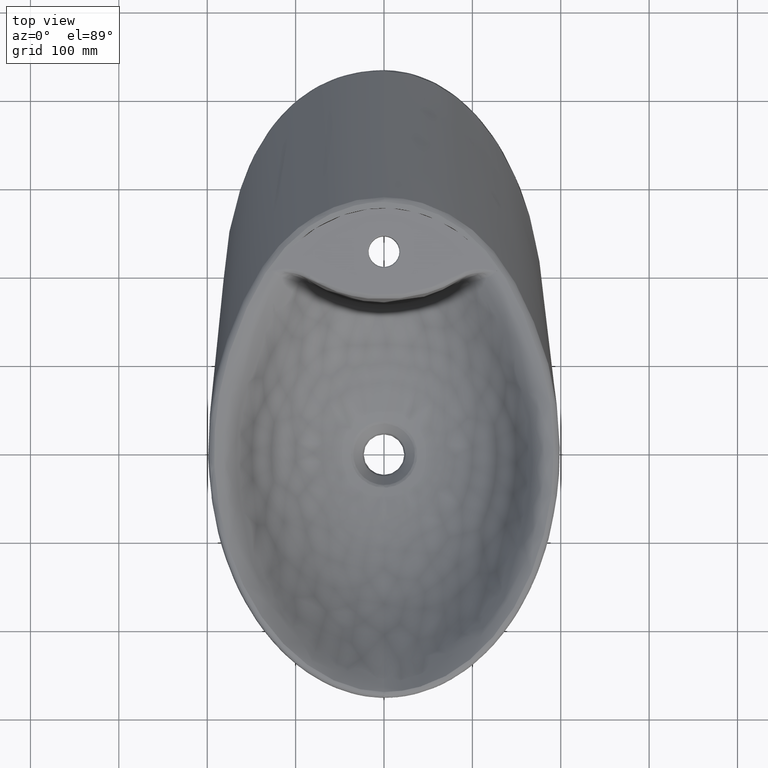
[diagram: clean part render]
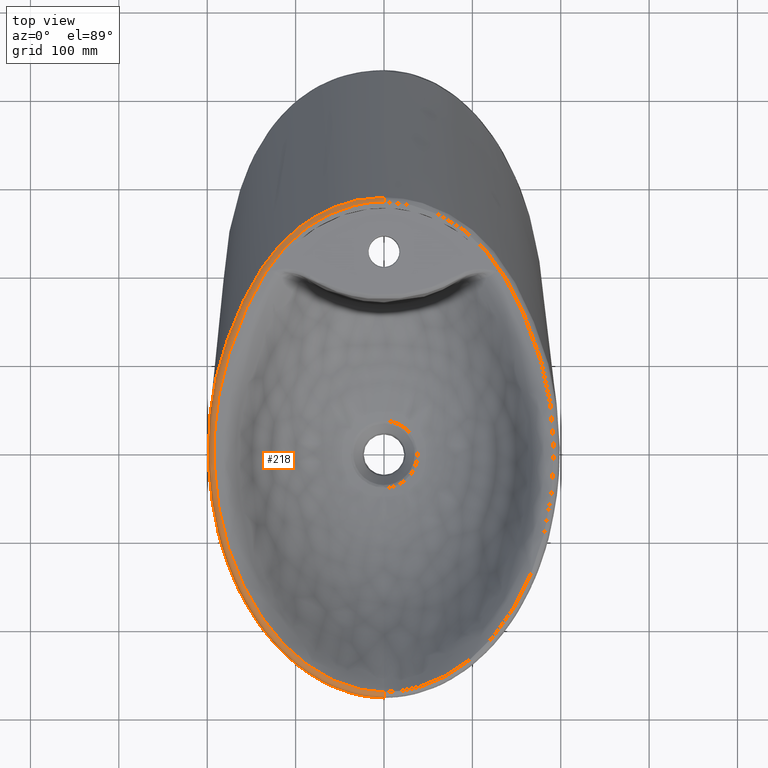
[diagram: same view with one face highlighted and labeled with its STEP entity id]
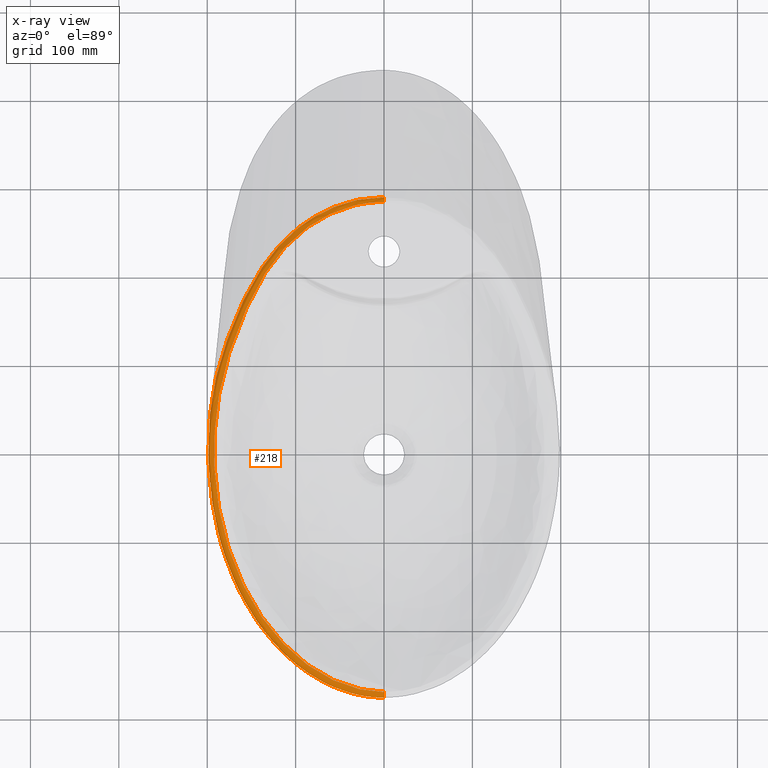
[diagram: x-ray of the same camera — body ghosted, the highlighted face saturated]
A machine part, top view. The second image highlights one B-rep face of the part: STEP entity #218.
The next image is the same camera in x-ray: the body ghosted, the highlighted face saturated — about 0% of this face is hidden behind the body in this view.
In plain terms, the highlighted face is a freeform B-spline surface patch.
Its self-contained STEP definition (entity closure, byte-faithful):
#120=(
BOUNDED_SURFACE()
B_SPLINE_SURFACE(2,3,((#10795,#10796,#10797,#10798,#10799,#10800,#10801,
#10802,#10803,#10804,#10805,#10806,#10807,#10808,#10809,#10810,#10811,#10812,
#10813,#10814,#10815,#10816,#10817,#10818,#10819,#10820,#10821,#10822,#10823,
#10824,#10825,#10826,#10827,#10828,#10829,#10830,#10831,#10832,#10833,#10834,
#10835,#10836,#10837,#10838,#10839,#10840,#10841,#10842,#10843,#10844,#10845,
#10846,#10847,#10848,#10849,#10850,#10851,#10852,#10853,#10854,#10855,#10856,
#10857,#10858,#10859,#10860,#10861,#10862,#10863,#10864,#10865,#10866,#10867,
#10868,#10869,#10870,#10871,#10872,#10873,#10874,#10875,#10876,#10877,#10878,
#10879,#10880,#10881,#10882,#10883,#10884,#10885,#10886,#10887,#10888),
(#10889,#10890,#10891,#10892,#10893,#10894,#10895,#10896,#10897,#10898,
#10899,#10900,#10901,#10902,#10903,#10904,#10905,#10906,#10907,#10908,#10909,
#10910,#10911,#10912,#10913,#10914,#10915,#10916,#10917,#10918,#10919,#10920,
#10921,#10922,#10923,#10924,#10925,#10926,#10927,#10928,#10929,#10930,#10931,
#10932,#10933,#10934,#10935,#10936,#10937,#10938,#10939,#10940,#10941,#10942,
#10943,#10944,#10945,#10946,#10947,#10948,#10949,#10950,#10951,#10952,#10953,
#10954,#10955,#10956,#10957,#10958,#10959,#10960,#10961,#10962,#10963,#10964,
#10965,#10966,#10967,#10968,#10969,#10970,#10971,#10972,#10973,#10974,#10975,
#10976,#10977,#10978,#10979,#10980,#10981,#10982),(#10983,#10984,#10985,
#10986,#10987,#10988,#10989,#10990,#10991,#10992,#10993,#10994,#10995,#10996,
#10997,#10998,#10999,#11000,#11001,#11002,#11003,#11004,#11005,#11006,#11007,
#11008,#11009,#11010,#11011,#11012,#11013,#11014,#11015,#11016,#11017,#11018,
#11019,#11020,#11021,#11022,#11023,#11024,#11025,#11026,#11027,#11028,#11029,
#11030,#11031,#11032,#11033,#11034,#11035,#11036,#11037,#11038,#11039,#11040,
#11041,#11042,#11043,#11044,#11045,#11046,#11047,#11048,#11049,#11050,#11051,
#11052,#11053,#11054,#11055,#11056,#11057,#11058,#11059,#11060,#11061,#11062,
#11063,#11064,#11065,#11066,#11067,#11068,#11069,#11070,#11071,#11072,#11073,
#11074,#11075,#11076)),.UNSPECIFIED.,.F.,.F.,.F.)
B_SPLINE_SURFACE_WITH_KNOTS((3,3),(4,2,2,2,2,2,2,2,2,2,2,2,2,2,2,2,2,2,
2,2,2,2,2,2,2,2,2,2,2,2,2,2,2,2,2,2,2,2,2,2,2,2,2,2,2,2,4),(0.,1.),(0.,
0.0009765625,0.001953125,0.00390625,0.0078125,0.015625,0.03125,0.0625,0.125,
0.1875,0.25,0.3125,0.375,0.4375,0.5,0.50048828125,0.5009765625,0.501953125,
0.50390625,0.5078125,0.515625,0.53125,0.5625,0.625,0.65625,0.6875,0.6953125,
0.703125,0.71875,0.75,0.75048828125,0.7509765625,0.751953125,0.75390625,
0.7578125,0.765625,0.78125,0.8125,0.875,0.8759765625,0.876953125,0.87890625,
0.8828125,0.890625,0.90625,0.9375,1.),.UNSPECIFIED.)
GEOMETRIC_REPRESENTATION_ITEM()
RATIONAL_B_SPLINE_SURFACE(((1.,1.,1.,1.,1.,1.,1.,1.,1.,1.,1.,1.,1.,1.,1.,
1.,1.,1.,1.,1.,1.,1.,1.,1.,1.,1.,1.,1.,1.,1.,1.,1.,1.,1.,1.,1.,1.,1.,1.,
1.,1.,1.,1.,1.,1.,1.,1.,1.,1.,1.,1.,1.,1.,1.,1.,1.,1.,1.,1.,1.,1.,1.,1.,
1.,1.,1.,1.,1.,1.,1.,1.,1.,1.,1.,1.,1.,1.,1.,1.,1.,1.,1.,1.,1.,1.,1.,1.,
1.,1.,1.,1.,1.,1.,1.),(0.194194751152532,0.194167239897954,0.19416036085634,
0.194134527430296,0.194121430667637,0.194081611457449,0.194054360055503,
0.193970580916874,0.193912027674847,0.193729010678562,0.193597178001968,
0.193178524938617,0.19286823658967,0.191902962402985,0.191202376924033,
0.189678049240112,0.189206646613415,0.194123693348431,0.199559133064821,
0.220863509214191,0.237374091251381,0.281363978295846,0.309958368205674,
0.375575440810765,0.413190927438893,0.484231578382725,0.517031309847995,
0.577402727649735,0.607881423215454,0.641447201221586,0.641403962052924,
0.641487926228353,0.641530154749993,0.64165758004101,0.641743516534412,
0.642004288363966,0.642182085854943,0.642727354380042,0.643106701638531,
0.644292497680685,0.645146691879367,0.647902561442335,0.650000622368357,
0.657062680349364,0.662790927091347,0.68310012489854,0.700927088524681,
0.733689524582585,0.745435976314396,0.770234334371072,0.783709789549626,
0.800126662464972,0.803870337865317,0.808171709244196,0.809538769638903,
0.814300354360387,0.817355974311297,0.828989045213769,0.838151857499205,
0.848235488458615,0.848315191085488,0.848536040443759,0.848646455833009,
0.848977679700958,0.849198464797755,0.849860763613343,0.850302222511661,
0.851626679054331,0.852510059151109,0.855160575194924,0.856926404311846,
0.86220506242036,0.865699014573527,0.87598030706542,0.882563998893693,0.900661363366382,
0.910321388926596,0.91683795641103,0.916892571046314,0.917045737755239,
0.917122407467111,0.917352761750484,0.917507261723268,0.917974206778886,
0.918288520559691,0.919212863978314,0.919791061513603,0.921367208848063,
0.922389590617478,0.92540840422309,0.927217523972883,0.931937836599327,
0.933997639719353,0.933962512398455),(1.,1.,1.,1.,1.,1.,1.,1.,1.,1.,1.,
1.,1.,1.,1.,1.,1.,1.,1.,1.,1.,1.,1.,1.,1.,1.,1.,1.,1.,1.,1.,1.,1.,1.,1.,
1.,1.,1.,1.,1.,1.,1.,1.,1.,1.,1.,1.,1.,1.,1.,1.,1.,1.,1.,1.,1.,1.,1.,1.,
1.,1.,1.,1.,1.,1.,1.,1.,1.,1.,1.,1.,1.,1.,1.,1.,1.,1.,1.,1.,1.,1.,1.,1.,
1.,1.,1.,1.,1.,1.,1.,1.,1.,1.,1.)))
REPRESENTATION_ITEM('')
SURFACE()
);
#155=FACE_OUTER_BOUND('',#395,.T.);
#218=ADVANCED_FACE('',(#155),#120,.F.);
#301=B_SPLINE_CURVE_WITH_KNOTS('',3,(#10432,#10433,#10434,#10435),
 .UNSPECIFIED.,.F.,.F.,(4,4),(0.,1.),.UNSPECIFIED.);
#302=B_SPLINE_CURVE_WITH_KNOTS('',3,(#10473,#10474,#10475,#10476,#10477,
#10478,#10479,#10480,#10481,#10482),.UNSPECIFIED.,.F.,.F.,(4,2,2,2,4),(0.,
0.25,0.5,0.75,1.),.UNSPECIFIED.);
#303=B_SPLINE_CURVE_WITH_KNOTS('',3,(#10620,#10621,#10622,#10623,#10624,
#10625,#10626,#10627,#10628,#10629,#10630,#10631,#10632,#10633,#10634,#10635,
#10636,#10637,#10638,#10639,#10640,#10641,#10642,#10643,#10644,#10645,#10646,
#10647,#10648,#10649,#10650,#10651,#10652,#10653,#10654,#10655,#10656,#10657,
#10658,#10659,#10660,#10661,#10662,#10663,#10664,#10665,#10666,#10667,#10668,
#10669,#10670,#10671,#10672,#10673,#10674,#10675,#10676,#10677,#10678,#10679,
#10680,#10681,#10682,#10683,#10684,#10685,#10686,#10687,#10688,#10689,#10690,
#10691,#10692,#10693,#10694,#10695,#10696,#10697,#10698,#10699,#10700,#10701,
#10702,#10703,#10704,#10705,#10706,#10707,#10708),.UNSPECIFIED.,.F.,.F.,
(4,2,1,1,1,2,2,2,2,2,2,2,2,2,1,1,1,2,2,2,1,1,1,2,2,2,2,2,2,2,2,2,2,2,2,
1,1,1,2,2,2,2,2,2,1,2,2,2,2,2,4),(0.,0.000976562499999953,0.00195312499999991,
0.00390624999999981,0.00781249999999963,0.0156249999999993,0.0312499999999986,
0.0624999999999972,0.124999999999994,0.187499999999991,0.249999999999989,
0.312499999999986,0.374999999999983,0.43749999999998,0.468749999999979,
0.484374999999978,0.492187499999978,0.496093749999977,0.499999999999977,
0.500488281249977,0.500976562499977,0.501953124999977,0.503906249999977,
0.507812499999977,0.515624999999976,0.531249999999976,0.562499999999974,
0.624999999999971,0.65624999999997,0.687499999999968,0.703124999999967,
0.718749999999967,0.734374999999966,0.749999999999965,0.750488281249965,
0.750976562499965,0.751953124999965,0.753906249999966,0.757812499999966,
0.765624999999967,0.781249999999968,0.812499999999972,0.874999999999979,
0.875976562499979,0.876953124999979,0.87890624999998,0.88281249999998,0.890624999999982,
0.906249999999984,0.937499999999989,1.),.UNSPECIFIED.);
#304=B_SPLINE_CURVE_WITH_KNOTS('',3,(#10709,#10710,#10711,#10712,#10713,
#10714,#10715,#10716,#10717,#10718,#10719,#10720,#10721,#10722,#10723,#10724,
#10725,#10726,#10727,#10728,#10729,#10730,#10731,#10732,#10733,#10734,#10735,
#10736,#10737,#10738,#10739,#10740,#10741,#10742,#10743,#10744,#10745,#10746,
#10747,#10748,#10749,#10750,#10751,#10752,#10753,#10754,#10755,#10756,#10757,
#10758,#10759,#10760,#10761,#10762,#10763,#10764,#10765,#10766,#10767,#10768,
#10769,#10770,#10771,#10772,#10773,#10774,#10775,#10776,#10777,#10778,#10779,
#10780,#10781,#10782,#10783,#10784,#10785,#10786,#10787,#10788,#10789,#10790,
#10791,#10792,#10793,#10794),.UNSPECIFIED.,.F.,.F.,(4,2,2,2,2,2,2,2,2,2,
2,2,2,2,1,1,2,2,2,2,2,2,2,2,2,2,2,2,1,1,1,2,2,2,2,2,2,2,2,2,2,2,1,1,1,2,
4),(0.,0.0625000000000036,0.0937500000000052,0.109375000000006,0.117187500000006,
0.121093750000006,0.123046875000006,0.124023437500006,0.125000000000006,
0.187500000000012,0.218750000000014,0.234375000000015,0.242187500000016,
0.246093750000016,0.248046875000017,0.249023437500017,0.249511718750017,
0.250000000000017,0.281250000000016,0.296875000000015,0.304687500000015,
0.312500000000015,0.343750000000014,0.375000000000013,0.437500000000012,
0.468750000000011,0.484375000000011,0.492187500000011,0.496093750000011,
0.49804687500001,0.49902343750001,0.49951171875001,0.50000000000001,0.562500000000009,
0.625000000000008,0.687500000000007,0.750000000000005,0.812500000000004,
0.875000000000003,0.937500000000001,0.968750000000001,0.984375,0.9921875,
0.99609375,0.998046875,0.9990234375,1.),.UNSPECIFIED.);
#395=EDGE_LOOP('',(#531,#532,#533,#534));
#531=ORIENTED_EDGE('',*,*,#770,.T.);
#532=ORIENTED_EDGE('',*,*,#772,.T.);
#533=ORIENTED_EDGE('',*,*,#768,.T.);
#534=ORIENTED_EDGE('',*,*,#773,.T.);
#684=VERTEX_POINT('',#10436);
#685=VERTEX_POINT('',#10437);
#686=VERTEX_POINT('',#10472);
#687=VERTEX_POINT('',#10483);
#768=EDGE_CURVE('',#684,#685,#301,.T.);
#770=EDGE_CURVE('',#687,#686,#302,.T.);
#772=EDGE_CURVE('',#686,#684,#303,.T.);
#773=EDGE_CURVE('',#685,#687,#304,.T.);
#10432=CARTESIAN_POINT('',(0.0313888779944722,283.73024941253,-2.68689748302733));
#10433=CARTESIAN_POINT('',(0.0325990248738294,285.636227326521,-2.68658880374001));
#10434=CARTESIAN_POINT('',(0.033878620752148,287.651572336318,-3.45736537496826));
#10435=CARTESIAN_POINT('',(0.0347798086726902,289.070916207325,-4.72945631352489));
#10436=CARTESIAN_POINT('',(0.0314223971429206,283.73024834798,-2.68689748319223));
#10437=CARTESIAN_POINT('',(0.0313768055137461,289.070918242235,-4.72945627297798));
#10472=CARTESIAN_POINT('',(0.196541759239916,-270.864356344197,-3.84220744050507));
#10473=CARTESIAN_POINT('',(0.210647420151727,-275.7671915819,-12.3387277155126));
#10474=CARTESIAN_POINT('',(0.207892023212469,-276.382409794757,-11.8004384778481));
#10475=CARTESIAN_POINT('',(0.204627455107442,-277.015030788582,-10.9753900433037));
#10476=CARTESIAN_POINT('',(0.199194867891133,-277.608419100822,-8.70888724003895));
#10477=CARTESIAN_POINT('',(0.197264688092685,-277.489716192779,-7.26261018799928));
#10478=CARTESIAN_POINT('',(0.19772578571458,-276.121228733026,-4.8910053489318));
#10479=CARTESIAN_POINT('',(0.200097846617261,-274.928467295079,-4.06449728589148));
#10480=CARTESIAN_POINT('',(0.206091697076649,-272.669231869408,-3.44405067846301));
#10481=CARTESIAN_POINT('',(0.209490435741748,-271.638349230069,-3.57889466074866));
#10482=CARTESIAN_POINT('',(0.212299285524073,-270.864444706529,-3.84216928160844));
#10483=CARTESIAN_POINT('',(0.204482560587401,-275.767148931823,-12.3387579224824));
#10620=CARTESIAN_POINT('',(0.196541844740291,-270.864340292072,-3.84221296909112));
#10621=CARTESIAN_POINT('',(-0.0137747829784619,-270.863370620734,-3.84265014373108));
#10622=CARTESIAN_POINT('',(-0.066538474972126,-270.862885516792,-3.84276165983472));
#10623=CARTESIAN_POINT('',(-0.264537740895213,-270.861378728825,-3.84318729932575));
#10624=CARTESIAN_POINT('',(-0.562270243346785,-270.858743458894,-3.84383908299294));
#10625=CARTESIAN_POINT('',(-1.26210803185549,-270.849936462803,-3.84545277758494));
#10626=CARTESIAN_POINT('',(-2.68224288741776,-270.821429429896,-3.84904837133869));
#10627=CARTESIAN_POINT('',(-3.93437786896172,-270.777419908942,-3.85275059574856));
#10628=CARTESIAN_POINT('',(-6.48452812533862,-270.660840803677,-3.86095053290304));
#10629=CARTESIAN_POINT('',(-8.24584229692996,-270.545052227448,-3.86748159840615));
#10630=CARTESIAN_POINT('',(-13.7070342507282,-270.063217932507,-3.88992635176958));
#10631=CARTESIAN_POINT('',(-17.584343207626,-269.562579923524,-3.90888642952324));
#10632=CARTESIAN_POINT('',(-29.8550510022821,-267.359172495385,-3.97069267471558));
#10633=CARTESIAN_POINT('',(-38.9185446557216,-264.938880108432,-4.02308014946165));
#10634=CARTESIAN_POINT('',(-58.2993183789716,-257.337013685434,-4.08967889287475));
#10635=CARTESIAN_POINT('',(-68.6227710896955,-252.14181594364,-4.10416530412638));
#10636=CARTESIAN_POINT('',(-89.7772345811348,-238.257502498388,-4.03462504755087));
#10637=CARTESIAN_POINT('',(-100.610972725939,-229.566854191607,-3.94664794605281));
#10638=CARTESIAN_POINT('',(-121.780953750206,-208.195147447501,-3.71119209577456));
#10639=CARTESIAN_POINT('',(-132.10327356372,-195.557873001186,-3.55710996786325));
#10640=CARTESIAN_POINT('',(-151.194585606146,-166.307887277762,-3.26123650857559));
#10641=CARTESIAN_POINT('',(-159.964218152989,-149.723886604729,-3.12210663230209));
#10642=CARTESIAN_POINT('',(-174.849652234436,-112.890485497253,-2.92830158093728));
#10643=CARTESIAN_POINT('',(-180.943795953811,-92.6437162177519,-2.87141624667406));
#10644=CARTESIAN_POINT('',(-187.413865610449,-59.9659389303433,-2.81185012258743));
#10645=CARTESIAN_POINT('',(-189.981626632795,-43.0464912984689,-2.78840730027842));
#10646=CARTESIAN_POINT('',(-191.62991715939,-22.4131820139651,-2.76805789088612));
#10647=CARTESIAN_POINT('',(-192.09474206794,-11.8882920076312,-2.75912146498618));
#10648=CARTESIAN_POINT('',(-192.214548807565,-7.33463725522951,-2.75550207162512));
#10649=CARTESIAN_POINT('',(-192.276507235367,-4.28949620287728,-2.753129827707));
#10650=CARTESIAN_POINT('',(-192.299214014308,-2.70905047423665,-2.75191557275323));
#10651=CARTESIAN_POINT('',(-192.312991732911,-1.04572995425984,-2.75067822159332));
#10652=CARTESIAN_POINT('',(-192.311646485031,-1.07371394956439,-2.75073500349917));
#10653=CARTESIAN_POINT('',(-192.31064404714,-1.00575337420185,-2.75073534473296));
#10654=CARTESIAN_POINT('',(-192.309134250773,-0.903290649816741,-2.75073536881375));
#10655=CARTESIAN_POINT('',(-192.305565551052,-0.660557967714713,-2.75073201099957));
#10656=CARTESIAN_POINT('',(-192.298221440423,-0.160482168987909,-2.75071164758707));
#10657=CARTESIAN_POINT('',(-192.291490746431,0.293195857473554,-2.75067082152932));
#10658=CARTESIAN_POINT('',(-192.277215192434,1.23393518102847,-2.75055812652156));
#10659=CARTESIAN_POINT('',(-192.266618617588,1.90560582643394,-2.75044157905046));
#10660=CARTESIAN_POINT('',(-192.229502875466,4.05410910083769,-2.74996963232211));
#10661=CARTESIAN_POINT('',(-192.19775063984,5.66444115987084,-2.74949172631287));
#10662=CARTESIAN_POINT('',(-192.061243306155,11.0289390493729,-2.74759731181927));
#10663=CARTESIAN_POINT('',(-191.916802484934,15.3169281285614,-2.74571640869146));
#10664=CARTESIAN_POINT('',(-191.107550900178,30.3043605789428,-2.73852839939064));
#10665=CARTESIAN_POINT('',(-190.099606918612,43.1437991919909,-2.73148983913434));
#10666=CARTESIAN_POINT('',(-186.51956229656,66.4540028649464,-2.72075829414301));
#10667=CARTESIAN_POINT('',(-184.973698996818,74.8955619035577,-2.71718076909437));
#10668=CARTESIAN_POINT('',(-180.858202278109,93.0205964481501,-2.71040253942736));
#10669=CARTESIAN_POINT('',(-178.308755093965,102.65566735114,-2.70653046451532));
#10670=CARTESIAN_POINT('',(-173.338202464718,118.051094588633,-2.70313637740415));
#10671=CARTESIAN_POINT('',(-171.475190865898,123.324751161167,-2.70323367222752));
#10672=CARTESIAN_POINT('',(-167.530249627648,134.146457129436,-2.70254065774252));
#10673=CARTESIAN_POINT('',(-165.432740826659,139.702527256006,-2.70196244638002));
#10674=CARTESIAN_POINT('',(-160.912424575619,151.05611834875,-2.70058557118664));
#10675=CARTESIAN_POINT('',(-158.486145799341,156.852368943735,-2.69984371287989));
#10676=CARTESIAN_POINT('',(-153.202406469926,168.625421324322,-2.69822962492525));
#10677=CARTESIAN_POINT('',(-150.321862074143,174.646963339735,-2.69734946621519));
#10678=CARTESIAN_POINT('',(-147.125575398602,180.827390560026,-2.69637880384965));
#10679=CARTESIAN_POINT('',(-147.074864683818,180.924797456043,-2.69636525445891));
#10680=CARTESIAN_POINT('',(-146.935185590016,181.193477334164,-2.69632504944011));
#10681=CARTESIAN_POINT('',(-146.725487335249,181.596149788341,-2.69626473073045));
#10682=CARTESIAN_POINT('',(-146.234937606448,182.533273613353,-2.69612391491109));
#10683=CARTESIAN_POINT('',(-145.248831767454,184.397667360483,-2.69584205101658));
#10684=CARTESIAN_POINT('',(-144.395005171458,185.978644406516,-2.69560032617356));
#10685=CARTESIAN_POINT('',(-142.675836714306,189.117344883728,-2.69511794738832));
#10686=CARTESIAN_POINT('',(-141.514367741922,191.178797727777,-2.69479778062827));
#10687=CARTESIAN_POINT('',(-137.983686326042,197.266644728492,-2.69385023092195));
#10688=CARTESIAN_POINT('',(-135.568130273541,201.196382041778,-2.6932362074764));
#10689=CARTESIAN_POINT('',(-128.136965455166,212.576894640301,-2.69150829736982));
#10690=CARTESIAN_POINT('',(-122.934345853682,219.618941950522,-2.69051715166377));
#10691=CARTESIAN_POINT('',(-106.639891008947,238.989674575365,-2.68824907695726));
#10692=CARTESIAN_POINT('',(-94.8229192939943,249.48325198233,-2.68766346659309));
#10693=CARTESIAN_POINT('',(-82.6840651059626,257.665246785585,-2.68734597926597));
#10694=CARTESIAN_POINT('',(-82.5813638745155,257.733961227713,-2.68734355504906));
#10695=CARTESIAN_POINT('',(-82.2936431708634,257.926341677834,-2.68733643194754));
#10696=CARTESIAN_POINT('',(-81.8604486636072,258.214954553313,-2.68732584079992));
#10697=CARTESIAN_POINT('',(-81.4223907929567,258.503645383939,-2.68731555565895));
#10698=CARTESIAN_POINT('',(-80.5397048878524,259.08095779193,-2.68729552776666));
#10699=CARTESIAN_POINT('',(-79.9424762089474,259.465724088724,-2.68728293055768));
#10700=CARTESIAN_POINT('',(-78.1240889756012,260.618707606949,-2.68724757395047));
#10701=CARTESIAN_POINT('',(-76.876153110733,261.385461315676,-2.6872273782228));
#10702=CARTESIAN_POINT('',(-73.0269262963123,263.679612865149,-2.68716656146497));
#10703=CARTESIAN_POINT('',(-70.3208326506179,265.20301085543,-2.68712431693747));
#10704=CARTESIAN_POINT('',(-61.7574634364245,269.676507821049,-2.68702599460256));
#10705=CARTESIAN_POINT('',(-55.4632681881941,272.535527631326,-2.68698640291636));
#10706=CARTESIAN_POINT('',(-34.7404265779494,280.081232811232,-2.68690025025815));
#10707=CARTESIAN_POINT('',(-18.3906423685286,283.741637867484,-2.68689631808488));
#10708=CARTESIAN_POINT('',(0.0281127688379767,283.730250394171,-2.68689748298925));
#10709=CARTESIAN_POINT('',(0.0313768055085416,289.070918268956,-4.72945629695537));
#10710=CARTESIAN_POINT('',(-19.101085648512,289.082509225625,-4.72936313931332));
#10711=CARTESIAN_POINT('',(-36.0867438405371,285.340172195709,-4.78640682413033));
#10712=CARTESIAN_POINT('',(-57.6098482472624,277.636073581814,-4.91489503876681));
#10713=CARTESIAN_POINT('',(-64.1429149485437,274.718407946547,-4.96358842586313));
#10714=CARTESIAN_POINT('',(-73.039226241227,270.151547366364,-5.04336923212814));
#10715=CARTESIAN_POINT('',(-75.8482270293773,268.59695021629,-5.07004130218508));
#10716=CARTESIAN_POINT('',(-79.8451274115944,266.254997199241,-5.11087371814948));
#10717=CARTESIAN_POINT('',(-81.1452322940432,265.471171439612,-5.12594251026798));
#10718=CARTESIAN_POINT('',(-83.0436540424227,264.291366143993,-5.15000927305411));
#10719=CARTESIAN_POINT('',(-83.6675780018386,263.897526908368,-5.15818021326958));
#10720=CARTESIAN_POINT('',(-84.5892203770136,263.306697191553,-5.17026099827667));
#10721=CARTESIAN_POINT('',(-84.8940338475567,263.109754156379,-5.17424740426068));
#10722=CARTESIAN_POINT('',(-85.3477314607858,262.814421409021,-5.18017652270203));
#10723=CARTESIAN_POINT('',(-85.4983860586655,262.715988116067,-5.18214786672494));
#10724=CARTESIAN_POINT('',(-85.7985509315979,262.519153860314,-5.1860822320536));
#10725=CARTESIAN_POINT('',(-85.9055336269799,262.448785155669,-5.18742726112659));
#10726=CARTESIAN_POINT('',(-98.5954979457136,254.070980253418,-5.35852744726301));
#10727=CARTESIAN_POINT('',(-110.973551514301,243.340571835434,-5.61065660353782));
#10728=CARTESIAN_POINT('',(-128.020882200968,223.52829385504,-6.05730222348264));
#10729=CARTESIAN_POINT('',(-133.455363420233,216.329514683561,-6.21623046584859));
#10730=CARTESIAN_POINT('',(-141.193798619137,204.711054107631,-6.45712243214788));
#10731=CARTESIAN_POINT('',(-143.705137193632,200.701545482423,-6.53783332333806));
#10732=CARTESIAN_POINT('',(-147.368794510919,194.494991805071,-6.65787084014279));
#10733=CARTESIAN_POINT('',(-148.57281224848,192.394128756398,-6.69771301745283));
#10734=CARTESIAN_POINT('',(-150.353102376866,189.19675157182,-6.75703112646477));
#10735=CARTESIAN_POINT('',(-150.942233519447,188.123288802831,-6.77671891700744));
#10736=CARTESIAN_POINT('',(-151.819523342083,186.501846868566,-6.80611413793715));
#10737=CARTESIAN_POINT('',(-152.256569154454,185.68831199985,-6.82078052795019));
#10738=CARTESIAN_POINT('',(-152.763671893778,184.734313546212,-6.83784358496901));
#10739=CARTESIAN_POINT('',(-152.980405181013,184.324420091096,-6.84514680723745));
#10740=CARTESIAN_POINT('',(-153.124761279028,184.050928615363,-6.85001357838463));
#10741=CARTESIAN_POINT('',(-153.176949654647,183.951881063393,-6.85168835571435));
#10742=CARTESIAN_POINT('',(-159.743285371764,171.474728419387,-7.08133818605526));
#10743=CARTESIAN_POINT('',(-165.078252190311,159.459748946129,-7.28076199430004));
#10744=CARTESIAN_POINT('',(-172.010725439039,142.211172480956,-7.52050288980131));
#10745=CARTESIAN_POINT('',(-174.139289581442,136.599457128446,-7.5795001930746));
#10746=CARTESIAN_POINT('',(-177.141155187182,128.401094163383,-7.67162982415152));
#10747=CARTESIAN_POINT('',(-178.105984737641,125.708272749901,-7.69704863302066));
#10748=CARTESIAN_POINT('',(-179.988167072368,120.369221520564,-7.78399308728121));
#10749=CARTESIAN_POINT('',(-180.908823652586,117.703956179663,-7.86392827772651));
#10750=CARTESIAN_POINT('',(-185.207535908758,104.619367047367,-8.20093390286934));
#10751=CARTESIAN_POINT('',(-187.848546124237,94.7820775348418,-8.46052075757333));
#10752=CARTESIAN_POINT('',(-192.072351011487,76.2885035040618,-8.91259848744294));
#10753=CARTESIAN_POINT('',(-193.641419298996,67.6755611719127,-9.11290148538234));
#10754=CARTESIAN_POINT('',(-197.231706007049,43.8938640106668,-9.63589277210422));
#10755=CARTESIAN_POINT('',(-198.166222525761,30.8055492578121,-9.86938767755144));
#10756=CARTESIAN_POINT('',(-198.834910095874,15.5375322272335,-10.0824648062856));
#10757=CARTESIAN_POINT('',(-198.926860179802,11.1712781453556,-10.1308394558333));
#10758=CARTESIAN_POINT('',(-198.982307257488,5.71099636334919,-10.1737078298111));
#10759=CARTESIAN_POINT('',(-198.986616303465,4.07234760845615,-10.1830265984318));
#10760=CARTESIAN_POINT('',(-198.982453340982,1.88674874076608,-10.1898494249091));
#10761=CARTESIAN_POINT('',(-198.979267810281,1.20359873914933,-10.1909442037));
#10762=CARTESIAN_POINT('',(-198.972883478059,0.246935994435652,-10.1908858201033));
#10763=CARTESIAN_POINT('',(-198.969287361385,-0.214379795241035,-10.1904313807011));
#10764=CARTESIAN_POINT('',(-198.96459804585,-0.722806206464761,-10.1891709318541));
#10765=CARTESIAN_POINT('',(-198.962154685467,-0.969575022684784,-10.1883597835843));
#10766=CARTESIAN_POINT('',(-198.961088989855,-1.07373778001281,-10.187973552947));
#10767=CARTESIAN_POINT('',(-198.960374690489,-1.14282511164506,-10.1877075084919));
#10768=CARTESIAN_POINT('',(-198.960949722278,-1.11478029085726,-10.186204253184));
#10769=CARTESIAN_POINT('',(-198.610302393438,-26.2441093684536,-10.6216317809074));
#10770=CARTESIAN_POINT('',(-195.857818641417,-49.9473214879409,-10.9419090952433));
#10771=CARTESIAN_POINT('',(-186.861053237751,-94.1966327816948,-11.4201149083898));
#10772=CARTESIAN_POINT('',(-180.607342648714,-114.773824965968,-11.6082110478883));
#10773=CARTESIAN_POINT('',(-165.42589952085,-152.2849468165,-11.9535057632777));
#10774=CARTESIAN_POINT('',(-156.498651999192,-169.221929671504,-12.1142976980909));
#10775=CARTESIAN_POINT('',(-136.955841661185,-199.12639437509,-12.3932690492407));
#10776=CARTESIAN_POINT('',(-126.333820032366,-212.068004150511,-12.5169923846073));
#10777=CARTESIAN_POINT('',(-104.465703710726,-233.932518040934,-12.6841081174123));
#10778=CARTESIAN_POINT('',(-93.2314791593885,-242.819021841463,-12.7356882764038));
#10779=CARTESIAN_POINT('',(-71.2694740569807,-256.968106008612,-12.7376421070098));
#10780=CARTESIAN_POINT('',(-60.5326964226758,-262.236715044397,-12.6938742017176));
#10781=CARTESIAN_POINT('',(-40.3891180588271,-269.906433769498,-12.5755070233578));
#10782=CARTESIAN_POINT('',(-30.9721724910627,-272.321598685589,-12.5019239104032));
#10783=CARTESIAN_POINT('',(-18.2364511925801,-274.504557160536,-12.4175125234818));
#10784=CARTESIAN_POINT('',(-14.2148508548634,-274.995756318647,-12.3927967166376));
#10785=CARTESIAN_POINT('',(-8.5523157204494,-275.464734993052,-12.3651247220184));
#10786=CARTESIAN_POINT('',(-6.72639056157911,-275.576424406391,-12.357426740277));
#10787=CARTESIAN_POINT('',(-4.08289128218188,-275.68758898789,-12.3484708041643));
#10788=CARTESIAN_POINT('',(-2.78497299254481,-275.729073308026,-12.3446392377263));
#10789=CARTESIAN_POINT('',(-1.31294083592705,-275.755040876828,-12.3413565292922));
#10790=CARTESIAN_POINT('',(-0.587528002598049,-275.762690145485,-12.3400186977307));
#10791=CARTESIAN_POINT('',(-0.278914241749213,-275.764854353879,-12.3395110985157));
#10792=CARTESIAN_POINT('',(-0.0736783996237444,-275.766052801692,-12.3391873907548));
#10793=CARTESIAN_POINT('',(-0.0186530615434142,-275.766460141031,-12.3391032448397));
#10794=CARTESIAN_POINT('',(0.204482801430505,-275.767124641201,-12.3387791753499));
#10795=CARTESIAN_POINT('',(0.206352287306928,-270.864385349829,-3.84219257787799));
#10796=CARTESIAN_POINT('',(-0.00890316268457246,-270.863400453232,-3.84263996411089));
#10797=CARTESIAN_POINT('',(-0.061984567419262,-270.86291630333,-3.84275199331054));
#10798=CARTESIAN_POINT('',(-0.259971786342771,-270.861417170857,-3.84317736639964));
#10799=CARTESIAN_POINT('',(-0.35920994363072,-270.860542596064,-3.84339449485584));
#10800=CARTESIAN_POINT('',(-0.657657115545725,-270.857539214713,-3.84405914817452));
#10801=CARTESIAN_POINT('',(-0.857598838432784,-270.855030757089,-3.8445199410267));
#10802=CARTESIAN_POINT('',(-1.46034698529657,-270.845949503855,-3.84595493004821));
#10803=CARTESIAN_POINT('',(-1.86607652546704,-270.837820917603,-3.84698173850894));
#10804=CARTESIAN_POINT('',(-3.09488980996752,-270.806910373673,-3.85026889379404));
#10805=CARTESIAN_POINT('',(-3.92960056505929,-270.777604859074,-3.85273605730298));
#10806=CARTESIAN_POINT('',(-6.47961544744027,-270.661131985835,-3.86093309762209));
#10807=CARTESIAN_POINT('',(-8.24084331110816,-270.545419414834,-3.86746246334168));
#10808=CARTESIAN_POINT('',(-13.7017870782951,-270.063828309287,-3.88990197233363));
#10809=CARTESIAN_POINT('',(-17.5789557219455,-269.563368740457,-3.90886081153646));
#10810=CARTESIAN_POINT('',(-29.8492512672405,-267.360570761071,-3.97066042873597));
#10811=CARTESIAN_POINT('',(-38.9125568614154,-264.940747028543,-4.02305075088635));
#10812=CARTESIAN_POINT('',(-58.2930893380935,-257.33993836277,-4.0896663048071));
#10813=CARTESIAN_POINT('',(-68.6165211961116,-252.145301161561,-4.10416540733797));
#10814=CARTESIAN_POINT('',(-89.7711019602718,-238.262143937845,-4.03466563694257));
#10815=CARTESIAN_POINT('',(-100.60500000587,-229.572085179556,-3.94670022319226));
#10816=CARTESIAN_POINT('',(-121.775487967362,-208.201463526922,-3.71126703181473));
#10817=CARTESIAN_POINT('',(-132.09814615066,-195.564689071848,-3.55718836715286));
#10818=CARTESIAN_POINT('',(-151.190257185576,-166.315558067384,-3.26130465343866));
#10819=CARTESIAN_POINT('',(-159.960350377554,-149.731905881327,-3.12216373376703));
#10820=CARTESIAN_POINT('',(-174.846817478621,-112.89905066322,-2.92833174797884));
#10821=CARTESIAN_POINT('',(-180.9415024668,-92.6524529837391,-2.87143750376329));
#10822=CARTESIAN_POINT('',(-189.56935291448,-49.0822658490637,-2.79200567710597));
#10823=CARTESIAN_POINT('',(-192.10390188862,-25.7489182726685,-2.76919926303279));
#10824=CARTESIAN_POINT('',(-192.313009208904,-1.04773563319177,-2.75067861287649));
#10825=CARTESIAN_POINT('',(-192.311669515362,-1.07527418887496,-2.75073499052977));
#10826=CARTESIAN_POINT('',(-192.310667188038,-1.00732327718001,-2.75073534175453));
#10827=CARTESIAN_POINT('',(-192.310163980118,-0.973173862226289,-2.75073535477006));
#10828=CARTESIAN_POINT('',(-192.308647814154,-0.870203752701563,-2.7507349061019));
#10829=CARTESIAN_POINT('',(-192.307628315455,-0.800861193625462,-2.75073395669342));
#10830=CARTESIAN_POINT('',(-192.30454032699,-0.590746153792248,-2.75072915844378));
#10831=CARTESIAN_POINT('',(-192.302442366918,-0.447886409492842,-2.75072335969972));
#10832=CARTESIAN_POINT('',(-192.296003098761,-0.0109599733591806,-2.7506981743738));
#10833=CARTESIAN_POINT('',(-192.291516791055,0.291454325067728,-2.75067099593645));
#10834=CARTESIAN_POINT('',(-192.277244084065,1.23208150351282,-2.75055841672712));
#10835=CARTESIAN_POINT('',(-192.266650076517,1.9036787386796,-2.75044194450214));
#10836=CARTESIAN_POINT('',(-192.229543557224,4.05196580564545,-2.74997021859937));
#10837=CARTESIAN_POINT('',(-192.197800751076,5.66215921813766,-2.74949244954867));
#10838=CARTESIAN_POINT('',(-192.06132745161,11.0262569647936,-2.74759842401578));
#10839=CARTESIAN_POINT('',(-191.916927348433,15.3140032470642,-2.74571771890091));
#10840=CARTESIAN_POINT('',(-191.107811252265,30.3007630397322,-2.73853030983352));
#10841=CARTESIAN_POINT('',(-190.100033541748,43.1398514919211,-2.73149187889687));
#10842=CARTESIAN_POINT('',(-186.520316108915,66.4496793900836,-2.72076017346745));
#10843=CARTESIAN_POINT('',(-184.97458666257,74.891126427724,-2.71718233929169));
#10844=CARTESIAN_POINT('',(-180.859352890065,93.016054896776,-2.71040432633027));
#10845=CARTESIAN_POINT('',(-178.310045816033,102.651082589325,-2.70653293889707));
#10846=CARTESIAN_POINT('',(-174.168170195324,115.480559643264,-2.70370271391829));
#10847=CARTESIAN_POINT('',(-173.287531479282,118.086135496994,-2.70343264754973));
#10848=CARTESIAN_POINT('',(-171.445202264782,123.355694862582,-2.70317584232513));
#10849=CARTESIAN_POINT('',(-170.49062211704,126.025549520549,-2.70306065151509));
#10850=CARTESIAN_POINT('',(-167.531978750476,134.141826574605,-2.70254108106436));
#10851=CARTESIAN_POINT('',(-165.434516752282,139.697905742787,-2.70196298579677));
#10852=CARTESIAN_POINT('',(-158.654209874842,156.728354347312,-2.69989772859967));
#10853=CARTESIAN_POINT('',(-153.469556201206,168.559852820967,-2.69830721392769));
#10854=CARTESIAN_POINT('',(-147.12709742878,180.824457453062,-2.69637923761923));
#10855=CARTESIAN_POINT('',(-147.076471701226,180.921702692532,-2.69636571722985));
#10856=CARTESIAN_POINT('',(-146.936792344223,181.19039016216,-2.69632551172109));
#10857=CARTESIAN_POINT('',(-146.866892908664,181.324617884906,-2.69630540526758));
#10858=CARTESIAN_POINT('',(-146.657014963674,181.726952736671,-2.69624507538922));
#10859=CARTESIAN_POINT('',(-146.516857504699,181.994710223959,-2.6962048416183));
#10860=CARTESIAN_POINT('',(-146.095670441315,182.796573924346,-2.69608410731448));
#10861=CARTESIAN_POINT('',(-145.813925375334,183.329272980916,-2.69600357256727));
#10862=CARTESIAN_POINT('',(-144.965825467707,184.921678658083,-2.69576193072305));
#10863=CARTESIAN_POINT('',(-144.396606375699,185.975693560971,-2.69560077812151));
#10864=CARTESIAN_POINT('',(-142.67743355135,189.114484436388,-2.69511839011636));
#10865=CARTESIAN_POINT('',(-141.515961222567,191.175997120129,-2.69479821599659));
#10866=CARTESIAN_POINT('',(-137.985268534427,197.264022501653,-2.69385064013101));
#10867=CARTESIAN_POINT('',(-135.569702787604,201.193876532133,-2.69323659609194));
#10868=CARTESIAN_POINT('',(-128.138504764739,212.574731703858,-2.69150860937253));
#10869=CARTESIAN_POINT('',(-122.935852701022,219.616991039012,-2.69051740900404));
#10870=CARTESIAN_POINT('',(-106.641279364223,238.988343207886,-2.68824917503072));
#10871=CARTESIAN_POINT('',(-94.8449123349123,249.468302473561,-2.68766410639406));
#10872=CARTESIAN_POINT('',(-82.6848155461728,257.664742918319,-2.68734599788734));
#10873=CARTESIAN_POINT('',(-82.5821866190477,257.73340979097,-2.68734357558672));
#10874=CARTESIAN_POINT('',(-82.2944656968743,257.925793019765,-2.68733645214281));
#10875=CARTESIAN_POINT('',(-82.1500675117563,258.021998898546,-2.68733292130345));
#10876=CARTESIAN_POINT('',(-81.7152513851695,258.310641807484,-2.68732243189369));
#10877=CARTESIAN_POINT('',(-81.4232124985033,258.503105231606,-2.68731557474759));
#10878=CARTESIAN_POINT('',(-80.5405255888082,259.080426455915,-2.68729554550123));
#10879=CARTESIAN_POINT('',(-79.9432960196909,259.465198747002,-2.68728294741478));
#10880=CARTESIAN_POINT('',(-78.1249055914914,260.618200854495,-2.68724758799704));
#10881=CARTESIAN_POINT('',(-76.8769664696022,261.384967151358,-2.68722739112724));
#10882=CARTESIAN_POINT('',(-73.0277259911019,263.679155035239,-2.68716657399281));
#10883=CARTESIAN_POINT('',(-70.3216202878623,265.202580072632,-2.68712432745246));
#10884=CARTESIAN_POINT('',(-61.7582016087301,269.676160836133,-2.68702600013556));
#10885=CARTESIAN_POINT('',(-55.4639558676347,272.535242813748,-2.68698640673653));
#10886=CARTESIAN_POINT('',(-34.7409173570322,280.08112293421,-2.68690025037619));
#10887=CARTESIAN_POINT('',(-18.3909188108563,283.741638038396,-2.6868963180674));
#10888=CARTESIAN_POINT('',(0.0281127688378786,283.730250394171,-2.68689748298925));
#10889=CARTESIAN_POINT('',(0.118537691732241,-294.775610851229,4.29239749715774));
#10890=CARTESIAN_POINT('',(-0.13403224280185,-294.777519103356,4.29466575408961));
#10891=CARTESIAN_POINT('',(-0.196266772401328,-294.777704114463,4.29522950376127));
#10892=CARTESIAN_POINT('',(-0.4285421488357,-294.778860215745,4.29738632732507));
#10893=CARTESIAN_POINT('',(-0.544969552208967,-294.779326284398,4.29848839506662));
#10894=CARTESIAN_POINT('',(-0.895120286914387,-294.780381702038,4.30186497194083));
#10895=CARTESIAN_POINT('',(-1.12971215665394,-294.780628274061,4.30420985625144));
#10896=CARTESIAN_POINT('',(-1.8369564131887,-294.779941732218,4.31152120735888));
#10897=CARTESIAN_POINT('',(-2.31307769582551,-294.77758254352,4.31676440503927));
#10898=CARTESIAN_POINT('',(-3.75526422865523,-294.764353028012,4.33356162291956));
#10899=CARTESIAN_POINT('',(-4.73515665430377,-294.747333747707,4.34618406759693));
#10900=CARTESIAN_POINT('',(-7.72956524168746,-294.667992170802,4.38798819423189));
#10901=CARTESIAN_POINT('',(-9.79890236893369,-294.577438006826,4.42113256810074));
#10902=CARTESIAN_POINT('',(-16.2186582673236,-294.16152954081,4.53303777546316));
#10903=CARTESIAN_POINT('',(-20.7823584339593,-293.692960633749,4.62530788518794));
#10904=CARTESIAN_POINT('',(-35.2084644095748,-291.430806669368,4.90373702249185));
#10905=CARTESIAN_POINT('',(-45.8926594269403,-288.767026973345,5.11060276128575));
#10906=CARTESIAN_POINT('',(-68.2310045374537,-279.71043144514,5.18174853866573));
#10907=CARTESIAN_POINT('',(-79.9176429780673,-273.255601911557,5.03192250164752));
#10908=CARTESIAN_POINT('',(-102.828476022134,-256.066311492233,4.19339559638871));
#10909=CARTESIAN_POINT('',(-114.090428279741,-245.28163720497,3.49305947266392));
#10910=CARTESIAN_POINT('',(-135.3036363369,-219.992219797501,1.98859787057308));
#10911=CARTESIAN_POINT('',(-145.255831338233,-205.456381840605,1.15516926085766));
#10912=CARTESIAN_POINT('',(-163.319127030187,-173.054618962798,-0.308477098137734));
#10913=CARTESIAN_POINT('',(-171.432888469444,-155.158400843464,-0.94663459680672));
#10914=CARTESIAN_POINT('',(-185.145019373552,-116.245943600394,-1.84250622871501));
#10915=CARTESIAN_POINT('',(-190.726939728648,-95.1934872195298,-2.10106983850499));
#10916=CARTESIAN_POINT('',(-198.40695757537,-50.2682372737788,-2.39531037441041));
#10917=CARTESIAN_POINT('',(-200.444804533474,-26.3465880430457,-2.4481426613691));
#10918=CARTESIAN_POINT('',(-200.083094549846,-1.13370295835832,-2.4927938746565));
#10919=CARTESIAN_POINT('',(-200.08350924747,-1.16185291189368,-2.49265716094742));
#10920=CARTESIAN_POINT('',(-200.082544134557,-1.09255205697481,-2.49265515407963));
#10921=CARTESIAN_POINT('',(-200.082054242609,-1.05772399398501,-2.49265453861337));
#10922=CARTESIAN_POINT('',(-200.080562127342,-0.952706919444616,-2.49265385555084));
#10923=CARTESIAN_POINT('',(-200.079537466173,-0.881985022418858,-2.49265495130092));
#10924=CARTESIAN_POINT('',(-200.076370212598,-0.667687954181395,-2.49266288693497));
#10925=CARTESIAN_POINT('',(-200.074134375936,-0.521981504845751,-2.4926743747959));
#10926=CARTESIAN_POINT('',(-200.067024882646,-0.076339529013282,-2.49272738562226));
#10927=CARTESIAN_POINT('',(-200.061749624091,0.232119056574601,-2.49278746042112));
#10928=CARTESIAN_POINT('',(-200.044071178928,1.19157552799293,-2.49304149673983));
#10929=CARTESIAN_POINT('',(-200.029821621036,1.87665445278442,-2.49330929551958));
#10930=CARTESIAN_POINT('',(-199.977489342858,4.06812099101278,-2.49440378478844));
#10931=CARTESIAN_POINT('',(-199.929851727825,5.7108018285832,-2.49552346098601));
#10932=CARTESIAN_POINT('',(-199.728350599391,11.1823004873024,-2.49998728585232));
#10933=CARTESIAN_POINT('',(-199.517532339377,15.5549138819535,-2.50442516090705));
#10934=CARTESIAN_POINT('',(-198.436102108025,30.8267491875799,-2.52199867083031));
#10935=CARTESIAN_POINT('',(-197.147252099056,43.897050539034,-2.54046402153871));
#10936=CARTESIAN_POINT('',(-192.9953223315,67.5654534184539,-2.57203053063962));
#10937=CARTESIAN_POINT('',(-191.237475652883,76.1266520685479,-2.58254462562872));
#10938=CARTESIAN_POINT('',(-186.658109476791,94.4846370848464,-2.60282149543059));
#10939=CARTESIAN_POINT('',(-183.847809116234,104.235174723807,-2.61412003900262));
#10940=CARTESIAN_POINT('',(-179.375289387153,117.197711010859,-2.62344704751487));
#10941=CARTESIAN_POINT('',(-178.417009931182,119.83364640395,-2.62484259052771));
#10942=CARTESIAN_POINT('',(-176.491279582147,125.13785873871,-2.62625323786832));
#10943=CARTESIAN_POINT('',(-175.512506166558,127.819102036198,-2.6267218581798));
#10944=CARTESIAN_POINT('',(-172.464612029075,135.976489902581,-2.62864029999201));
#10945=CARTESIAN_POINT('',(-170.308660502702,141.560784685875,-2.63032529472483));
#10946=CARTESIAN_POINT('',(-163.286564059851,158.699933369414,-2.63674351899845));
#10947=CARTESIAN_POINT('',(-157.896600789045,170.621024565055,-2.64187865117093));
#10948=CARTESIAN_POINT('',(-151.304595283575,182.98349416859,-2.64790518761607));
#10949=CARTESIAN_POINT('',(-151.252139361667,183.08159481586,-2.64794771578766));
#10950=CARTESIAN_POINT('',(-151.107155225929,183.352522839593,-2.64807371633438));
#10951=CARTESIAN_POINT('',(-151.034600807566,183.48787078944,-2.64813673200916));
#10952=CARTESIAN_POINT('',(-150.816749955888,183.893566192041,-2.64832582524828));
#10953=CARTESIAN_POINT('',(-150.671266644083,184.163563863176,-2.64845194843366));
#10954=CARTESIAN_POINT('',(-150.234069070086,184.972147649055,-2.64883049143987));
#10955=CARTESIAN_POINT('',(-149.94160635646,185.509326154355,-2.64908308758734));
#10956=CARTESIAN_POINT('',(-149.061211351087,187.115169186731,-2.64984144545386));
#10957=CARTESIAN_POINT('',(-148.470264665383,188.178143220869,-2.6503478512508));
#10958=CARTESIAN_POINT('',(-146.685318000318,191.343797364115,-2.65186692430982));
#10959=CARTESIAN_POINT('',(-145.479252954258,193.423187076842,-2.65287913392846));
#10960=CARTESIAN_POINT('',(-141.812808870487,199.564553259601,-2.65589442966791));
#10961=CARTESIAN_POINT('',(-139.304104743463,203.529574888229,-2.65787537631779));
#10962=CARTESIAN_POINT('',(-131.587924803712,215.013383886915,-2.66359038047452));
#10963=CARTESIAN_POINT('',(-126.187751668039,222.120794413525,-2.66708550893364));
#10964=CARTESIAN_POINT('',(-109.297763720773,241.670112740308,-2.67594925669434));
#10965=CARTESIAN_POINT('',(-97.1010184566878,252.243541219087,-2.67951702604867));
#10966=CARTESIAN_POINT('',(-84.5992052339274,260.508310581003,-2.68166359798831));
#10967=CARTESIAN_POINT('',(-84.4937657398758,260.577657169547,-2.68168009043735));
#10968=CARTESIAN_POINT('',(-84.1980263288935,260.771755643797,-2.68172862696698));
#10969=CARTESIAN_POINT('',(-84.0495999650724,260.868819216877,-2.6817527944961));
#10970=CARTESIAN_POINT('',(-83.6026369291458,261.160035980834,-2.68182493307692));
#10971=CARTESIAN_POINT('',(-83.3023928515307,261.354219134923,-2.68187256870457));
#10972=CARTESIAN_POINT('',(-82.3947251250864,261.936712675209,-2.6820132765623));
#10973=CARTESIAN_POINT('',(-81.7804319106506,262.324941468912,-2.68210390286453));
#10974=CARTESIAN_POINT('',(-79.9110527070553,263.488164498262,-2.68236336494388));
#10975=CARTESIAN_POINT('',(-78.6301053022968,264.261463143708,-2.68251805984022));
#10976=CARTESIAN_POINT('',(-74.6879641203249,266.574156396716,-2.68298885008771));
#10977=CARTESIAN_POINT('',(-71.9178108371244,268.109619533801,-2.683332585628));
#10978=CARTESIAN_POINT('',(-63.1494649262656,272.61916275423,-2.68422467036167));
#10979=CARTESIAN_POINT('',(-56.7110779846574,275.500985397993,-2.68469453144249));
#10980=CARTESIAN_POINT('',(-35.5135308659152,283.108694983349,-2.68592945529483));
#10981=CARTESIAN_POINT('',(-18.7967680462422,286.802849411406,-2.68644994711064));
#10982=CARTESIAN_POINT('',(0.029983692615887,286.791366146716,-2.68640133484037));
#10983=CARTESIAN_POINT('',(0.204482801430505,-275.767124641201,-12.3387791753499));
#10984=CARTESIAN_POINT('',(-0.0186530615433154,-275.766460141031,-12.3391032448397));
#10985=CARTESIAN_POINT('',(-0.0736783996802765,-275.766052801692,-12.3391873907549));
#10986=CARTESIAN_POINT('',(-0.27891424180584,-275.764854353878,-12.3395110985158));
#10987=CARTESIAN_POINT('',(-0.381785496782166,-275.76413295213,-12.3396802982868));
#10988=CARTESIAN_POINT('',(-0.691158417286713,-275.761597399741,-12.3402098167728));
#10989=CARTESIAN_POINT('',(-0.898419246550501,-275.759411908255,-12.3405920548566));
#10990=CARTESIAN_POINT('',(-1.52323131289624,-275.751331322282,-12.341825494865));
#10991=CARTESIAN_POINT('',(-1.94381226672044,-275.743912213193,-12.3427634260104));
#10992=CARTESIAN_POINT('',(-3.21761242248172,-275.715245201312,-12.3459164265391));
#10993=CARTESIAN_POINT('',(-4.0828912822401,-275.687588987888,-12.3484708041644));
#10994=CARTESIAN_POINT('',(-6.72639056163828,-275.576424406388,-12.3574267402773));
#10995=CARTESIAN_POINT('',(-8.55231572050912,-275.464734993048,-12.3651247220187));
#10996=CARTESIAN_POINT('',(-14.2148508549246,-274.995756318641,-12.3927967166379));
#10997=CARTESIAN_POINT('',(-18.2364511926418,-274.504557160527,-12.4175125234822));
#10998=CARTESIAN_POINT('',(-30.9721724911255,-272.321598685574,-12.5019239104037));
#10999=CARTESIAN_POINT('',(-40.3891180588892,-269.906433769479,-12.5755070233582));
#11000=CARTESIAN_POINT('',(-60.5326964227342,-262.23671504437,-12.6938742017179));
#11001=CARTESIAN_POINT('',(-71.2694740570359,-256.968106008582,-12.7376421070099));
#11002=CARTESIAN_POINT('',(-93.2314791594355,-242.819021841427,-12.7356882764036));
#11003=CARTESIAN_POINT('',(-104.465703710768,-233.932518040897,-12.6841081174121));
#11004=CARTESIAN_POINT('',(-126.333820032396,-212.068004150475,-12.516992384607));
#11005=CARTESIAN_POINT('',(-136.95584166121,-199.126394375056,-12.3932690492404));
#11006=CARTESIAN_POINT('',(-156.498651999206,-169.221929671478,-12.1142976980906));
#11007=CARTESIAN_POINT('',(-165.425899520859,-152.28494681648,-11.9535057632775));
#11008=CARTESIAN_POINT('',(-180.607342648715,-114.773824965963,-11.6082110478883));
#11009=CARTESIAN_POINT('',(-186.861053237749,-94.1966327816989,-11.4201149083898));
#11010=CARTESIAN_POINT('',(-195.857818641413,-49.947321487966,-10.9419090952436));
#11011=CARTESIAN_POINT('',(-198.610302393374,-26.2441093733169,-10.6216317810136));
#11012=CARTESIAN_POINT('',(-198.960949722278,-1.11478029086906,-10.186204253184));
#11013=CARTESIAN_POINT('',(-198.960374690489,-1.14282511165381,-10.1877075084918));
#11014=CARTESIAN_POINT('',(-198.961088989855,-1.07373778002165,-10.187973552947));
#11015=CARTESIAN_POINT('',(-198.961444221983,-1.03901686094446,-10.1881022965035));
#11016=CARTESIAN_POINT('',(-198.962503738612,-0.934322342288581,-10.188475662156));
#11017=CARTESIAN_POINT('',(-198.963201844902,-0.863816981478259,-10.1887074192997));
#11018=CARTESIAN_POINT('',(-198.965267977041,-0.650173834200534,-10.1893509965044));
#11019=CARTESIAN_POINT('',(-198.966607839424,-0.504909089653483,-10.1897111258052));
#11020=CARTESIAN_POINT('',(-198.970486066943,-0.0606078653589537,-10.1905828605018));
#11021=CARTESIAN_POINT('',(-198.972883478059,0.246935994425115,-10.1908858201033));
#11022=CARTESIAN_POINT('',(-198.979267810281,1.2035987391376,-10.1909442037));
#11023=CARTESIAN_POINT('',(-198.982453340982,1.88674874075351,-10.1898494249091));
#11024=CARTESIAN_POINT('',(-198.986616303465,4.07234760844093,-10.1830265984319));
#11025=CARTESIAN_POINT('',(-198.982307257488,5.71099636333204,-10.1737078298112));
#11026=CARTESIAN_POINT('',(-198.926860179802,11.1712781453322,-10.1308394558335));
#11027=CARTESIAN_POINT('',(-198.834910095874,15.5375322272053,-10.082464806286));
#11028=CARTESIAN_POINT('',(-198.166222525763,30.8055492577675,-9.86938767755217));
#11029=CARTESIAN_POINT('',(-197.231706007055,43.8938640106087,-9.63589277210536));
#11030=CARTESIAN_POINT('',(-193.64141929901,67.6755611718314,-9.11290148538419));
#11031=CARTESIAN_POINT('',(-192.072351011505,76.2885035039721,-8.912598487445));
#11032=CARTESIAN_POINT('',(-187.848546124264,94.7820775347356,-8.46052075757606));
#11033=CARTESIAN_POINT('',(-185.20753590879,104.619367047253,-8.20093390287086));
#11034=CARTESIAN_POINT('',(-180.908823652629,117.703956179536,-7.86392827773015));
#11035=CARTESIAN_POINT('',(-179.988167072413,120.369221520435,-7.78399308728392));
#11036=CARTESIAN_POINT('',(-178.105984737688,125.708272749768,-7.69704863302222));
#11037=CARTESIAN_POINT('',(-177.141155187231,128.401094163248,-7.67162982415307));
#11038=CARTESIAN_POINT('',(-174.139289581495,136.599457128304,-7.57950019307613));
#11039=CARTESIAN_POINT('',(-172.010725439097,142.211172480808,-7.52050288980323));
#11040=CARTESIAN_POINT('',(-165.07825219038,159.459748945967,-7.28076199430258));
#11041=CARTESIAN_POINT('',(-159.743285373802,171.474728415512,-7.08133818613257));
#11042=CARTESIAN_POINT('',(-153.176949654711,183.951881063272,-6.85168835571649));
#11043=CARTESIAN_POINT('',(-153.124761279095,184.050928615235,-6.8500135783869));
#11044=CARTESIAN_POINT('',(-152.980405181081,184.324420090968,-6.84514680723973));
#11045=CARTESIAN_POINT('',(-152.908160871473,184.461051018216,-6.84271240431817));
#11046=CARTESIAN_POINT('',(-152.691228587954,184.87059915607,-6.83540600278265));
#11047=CARTESIAN_POINT('',(-152.546341976171,185.143170376041,-6.83053083840534));
#11048=CARTESIAN_POINT('',(-152.110887217065,185.959490289294,-6.81589173128147));
#11049=CARTESIAN_POINT('',(-151.819523342151,186.501846868438,-6.80611413793945));
#11050=CARTESIAN_POINT('',(-150.942233519516,188.123288802703,-6.77671891700977));
#11051=CARTESIAN_POINT('',(-150.353102376936,189.196751571692,-6.75703112646712));
#11052=CARTESIAN_POINT('',(-148.572812248552,192.394128756271,-6.69771301745522));
#11053=CARTESIAN_POINT('',(-147.368794510992,194.494991804944,-6.65787084014521));
#11054=CARTESIAN_POINT('',(-143.70513719371,200.701545482297,-6.53783332334055));
#11055=CARTESIAN_POINT('',(-141.193798619217,204.711054107506,-6.45712243215041));
#11056=CARTESIAN_POINT('',(-133.45536342032,216.32951468344,-6.2162304658512));
#11057=CARTESIAN_POINT('',(-128.020882201061,223.528293854922,-6.05730222348527));
#11058=CARTESIAN_POINT('',(-110.97355151441,243.340571835328,-5.61065660354025));
#11059=CARTESIAN_POINT('',(-98.5954979482306,254.070980251748,-5.35852744729955));
#11060=CARTESIAN_POINT('',(-85.9055336270668,262.448785155612,-5.18742726112772));
#11061=CARTESIAN_POINT('',(-85.7985509316933,262.519153860251,-5.18608223205485));
#11062=CARTESIAN_POINT('',(-85.4983860587616,262.715988116005,-5.1821478667262));
#11063=CARTESIAN_POINT('',(-85.3477314608822,262.814421408958,-5.18017652270329));
#11064=CARTESIAN_POINT('',(-84.894033847654,263.109754156316,-5.17424740426196));
#11065=CARTESIAN_POINT('',(-84.5892203771116,263.30669719149,-5.17026099827795));
#11066=CARTESIAN_POINT('',(-83.6675780019385,263.897526908305,-5.15818021327088));
#11067=CARTESIAN_POINT('',(-83.0436540425239,264.29136614393,-5.15000927305543));
#11068=CARTESIAN_POINT('',(-81.1452322941479,265.471171439548,-5.12594251026924));
#11069=CARTESIAN_POINT('',(-79.8451274117014,266.254997199177,-5.1108737181506));
#11070=CARTESIAN_POINT('',(-75.8482270294919,268.596950216225,-5.0700413021862));
#11071=CARTESIAN_POINT('',(-73.0392262413473,270.1515473663,-5.04336923212929));
#11072=CARTESIAN_POINT('',(-64.1429149486805,274.718407946483,-4.96358842586422));
#11073=CARTESIAN_POINT('',(-57.6098482474111,277.636073581752,-4.91489503876786));
#11074=CARTESIAN_POINT('',(-36.0867438407251,285.340172195659,-4.78640682413112));
#11075=CARTESIAN_POINT('',(-19.1010856485034,289.082509225625,-4.72936313931332));
#11076=CARTESIAN_POINT('',(0.0313768055081338,289.070918268956,-4.72945629695537));